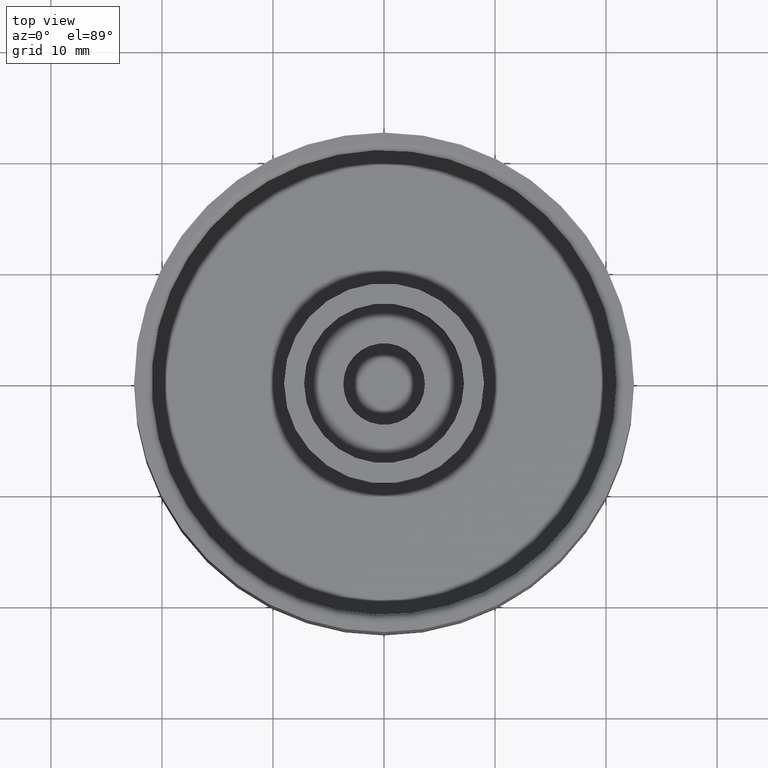
[diagram: clean part render]
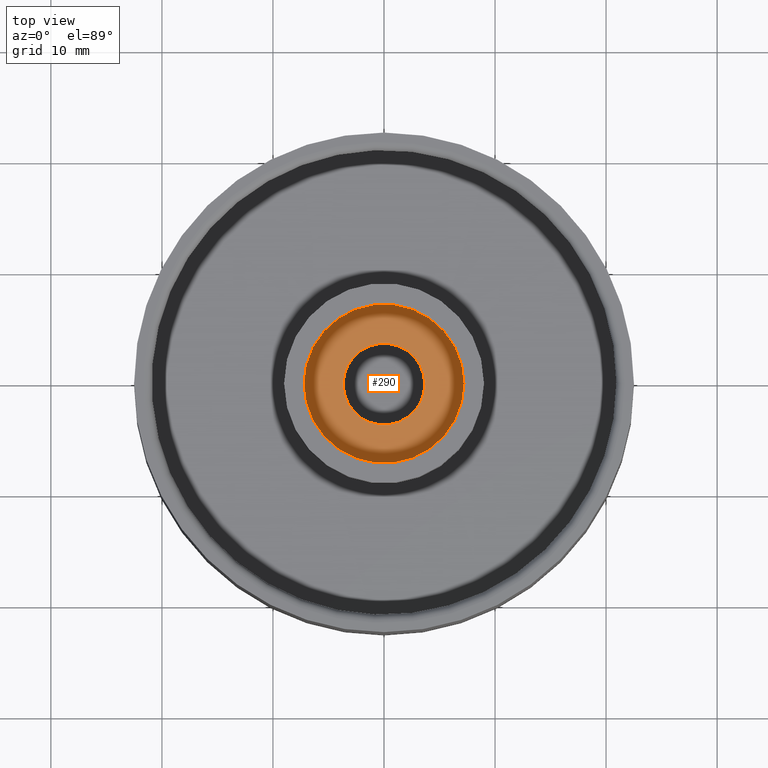
[diagram: same view with one face highlighted and labeled with its STEP entity id]
A machine part, top view. The second image highlights one B-rep face of the part: STEP entity #290.
In plain terms, the highlighted planar face has unit normal (0, 0, 1).
Its self-contained STEP definition (entity closure, byte-faithful):
#14 = CARTESIAN_POINT ( 'NONE',  ( 0.000000000000000000, 0.000000000000000000, 0.3065944881889763329 ) ) ;
#53 = AXIS2_PLACEMENT_3D ( 'NONE', #893, #175, #310 ) ;
#92 = DIRECTION ( 'NONE',  ( 1.000000000000000000, 0.000000000000000000, 0.000000000000000000 ) ) ;
#96 = EDGE_LOOP ( 'NONE', ( #691 ) ) ;
#175 = DIRECTION ( 'NONE',  ( 0.000000000000000000, 0.000000000000000000, 1.000000000000000000 ) ) ;
#183 = EDGE_CURVE ( 'NONE', #583, #583, #227, .T. ) ;
#227 = CIRCLE ( 'NONE', #592, 0.2834645669291338543 ) ;
#238 = VERTEX_POINT ( 'NONE', #896 ) ;
#241 = ORIENTED_EDGE ( 'NONE', *, *, #815, .F. ) ;
#290 = ADVANCED_FACE ( 'NONE', ( #524, #530 ), #674, .T. ) ;
#310 = DIRECTION ( 'NONE',  ( 1.000000000000000000, 0.000000000000000000, -0.000000000000000000 ) ) ;
#346 = EDGE_LOOP ( 'NONE', ( #241 ) ) ;
#420 = CARTESIAN_POINT ( 'NONE',  ( 0.000000000000000000, 0.000000000000000000, 0.3065944881889763329 ) ) ;
#524 = FACE_BOUND ( 'NONE', #346, .T. ) ;
#530 = FACE_OUTER_BOUND ( 'NONE', #96, .T. ) ;
#583 = VERTEX_POINT ( 'NONE', #871 ) ;
#592 = AXIS2_PLACEMENT_3D ( 'NONE', #14, #745, #92 ) ;
#674 = PLANE ( 'NONE',  #53 ) ;
#691 = ORIENTED_EDGE ( 'NONE', *, *, #183, .F. ) ;
#716 = DIRECTION ( 'NONE',  ( 1.000000000000000000, 0.000000000000000000, 0.000000000000000000 ) ) ;
#745 = DIRECTION ( 'NONE',  ( -0.000000000000000000, -0.000000000000000000, -1.000000000000000000 ) ) ;
#773 = CIRCLE ( 'NONE', #803, 0.1446850393700787329 ) ;
#794 = DIRECTION ( 'NONE',  ( 0.000000000000000000, 0.000000000000000000, 1.000000000000000000 ) ) ;
#803 = AXIS2_PLACEMENT_3D ( 'NONE', #420, #794, #716 ) ;
#815 = EDGE_CURVE ( 'NONE', #238, #238, #773, .T. ) ;
#871 = CARTESIAN_POINT ( 'NONE',  ( 0.2834645669291338543, 0.000000000000000000, 0.3065944881889763329 ) ) ;
#893 = CARTESIAN_POINT ( 'NONE',  ( 0.000000000000000000, 0.000000000000000000, 0.3065944881889763329 ) ) ;
#896 = CARTESIAN_POINT ( 'NONE',  ( 0.1446850393700787329, 0.000000000000000000, 0.3065944881889763329 ) ) ;